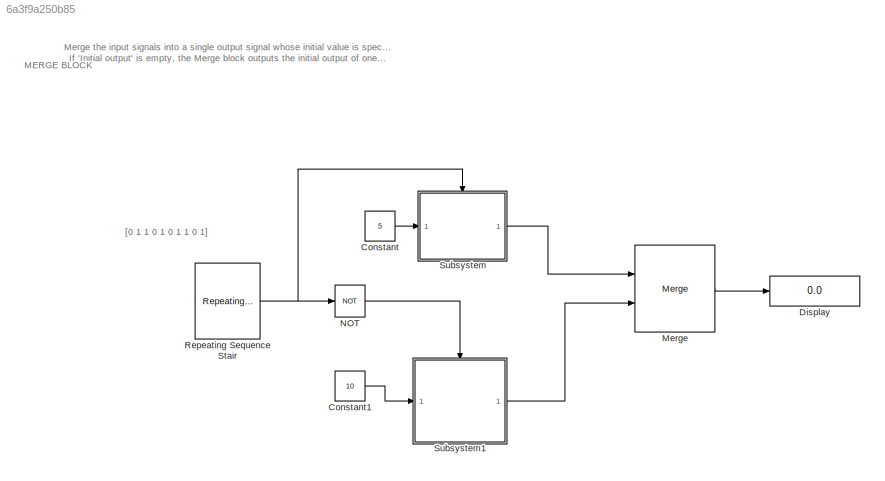
MODEL slx_6a3f9a250b85
KIND model
CONFIG AbsTol = auto
CONFIG EnableMultiTasking = off
CONFIG FixedStep = auto
CONFIG MaxStep = auto
CONFIG MinStep = auto
CONFIG RelTol = 1e-3
CONFIG SampleTimeConstraint = Unconstrained
CONFIG SolverName = FixedStepDiscrete
CONFIG StartTime = 0.0
CONFIG StopTime = 10.0
BLOCK [Constant] Constant
  Value = 5
BLOCK [Constant] Constant1
  Value = 10
BLOCK [Display] Display
  Decimation = 1
  Ports = [1]
BLOCK [Merge] Merge
  Ports = [2, 1]
BLOCK [Logic] NOT
  AllPortsSameDT = off
  IconShape = distinctive
  Operator = NOT
  OutDataTypeStr = boolean
  Ports = [1, 1]
BLOCK [Reference] Repeating Sequence Stair  REF=simulink/Sources/Repeating
Sequence
Stair
  Ports = [0, 1]
  SourceBlock = simulink/Sources/Repeating\nSequence\nStair
  SourceProductBaseCode = SL
  SourceType = Repeating Sequence Stair
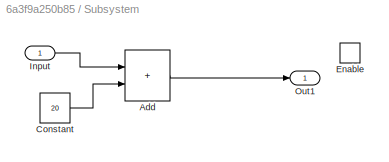
BLOCK [SubSystem] Subsystem
  Ports = [1, 1, 1]
  RequestExecContextInheritance = off
BLOCK [Sum] Subsystem/Add
  IconShape = rectangular
  Ports = [2, 1]
BLOCK [Constant] Subsystem/Constant
  Value = 20
BLOCK [EnablePort] Subsystem/Enable
  Ports = []
BLOCK [Inport] Subsystem/Input
BLOCK [Outport] Subsystem/Out1
  VectorParamsAs1DForOutWhenUnconnected = off
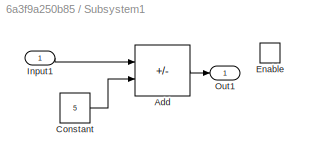
BLOCK [SubSystem] Subsystem1
  Ports = [1, 1, 1]
  RequestExecContextInheritance = off
BLOCK [Sum] Subsystem1/Add
  IconShape = rectangular
  Inputs = +-
  Ports = [2, 1]
BLOCK [Constant] Subsystem1/Constant
  Value = 5
BLOCK [EnablePort] Subsystem1/Enable
  Ports = []
BLOCK [Inport] Subsystem1/Input1
BLOCK [Outport] Subsystem1/Out1
  VectorParamsAs1DForOutWhenUnconnected = off
ANNOTATION (root): Merge the input signals into a single output signal whose initial value is specified by the 'Initial output' parameter. If 'Initial output' is empty, the Merge block outputs the initial output of one of its driving blocks.
ANNOTATION (root): [0 1 1 0 1 0 1 1 0 1]
ANNOTATION (root): MERGE BLOCK
LINE Constant1:1 -> Subsystem1:1
LINE Constant:1 -> Subsystem:1
LINE Merge:1 -> Display:1
LINE NOT:1 -> Subsystem1:enable
NET Repeating Sequence Stair:1 -> NOT:1, Subsystem:enable
LINE Subsystem/Add:1 -> Subsystem/Out1:1
LINE Subsystem/Constant:1 -> Subsystem/Add:2
LINE Subsystem/Input:1 -> Subsystem/Add:1
LINE Subsystem1/Add:1 -> Subsystem1/Out1:1
LINE Subsystem1/Constant:1 -> Subsystem1/Add:2
LINE Subsystem1/Input1:1 -> Subsystem1/Add:1
LINE Subsystem1:1 -> Merge:2
LINE Subsystem:1 -> Merge:1
note: NET lines group one-source signal fan-out (src -> all destinations, sorted); 1:1 wires keep LINE
